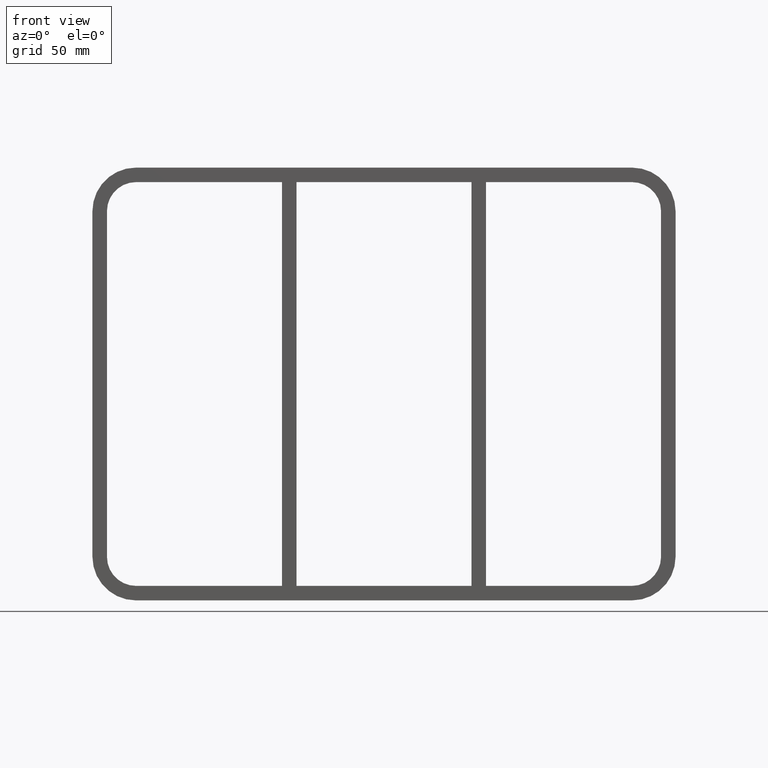
[diagram: clean part render]
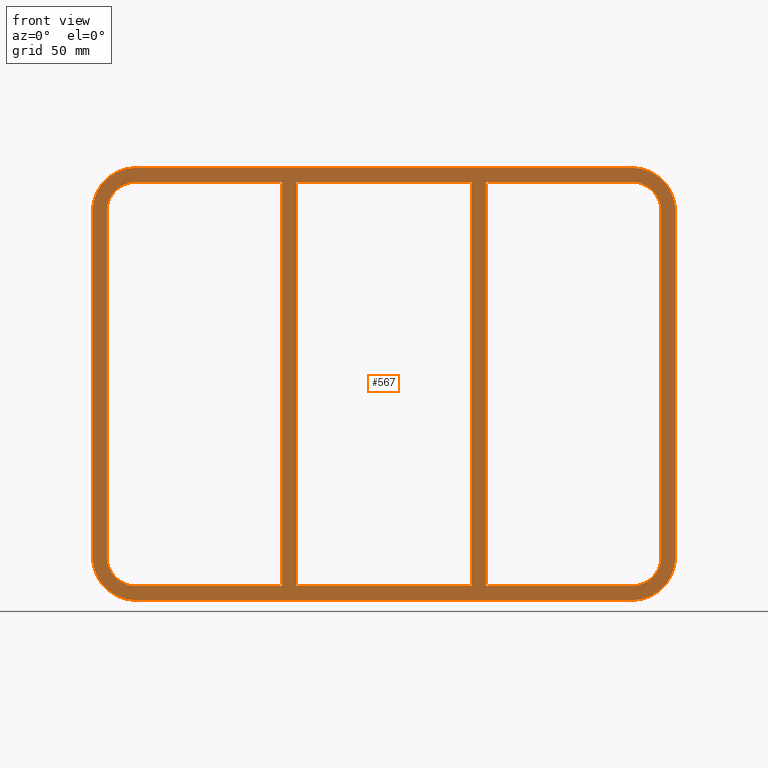
[diagram: same view with one face highlighted and labeled with its STEP entity id]
A machine part, front view. The second image highlights one B-rep face of the part: STEP entity #567.
In plain terms, the highlighted planar face has unit normal (0, 1, 0).
Its self-contained STEP definition (entity closure, byte-faithful):
#73=CARTESIAN_POINT('',(60.249999999998636,-3.0,-139.0));
#74=VERTEX_POINT('',#73);
#75=CARTESIAN_POINT('',(60.2499999999986,-3.0,139.0));
#76=VERTEX_POINT('',#75);
#77=CARTESIAN_POINT('',(60.249999999998636,-3.0,-139.0));
#78=DIRECTION('',(0.0,0.0,1.0));
#79=VECTOR('',#78,278.0);
#80=LINE('',#77,#79);
#81=EDGE_CURVE('',#74,#76,#80,.T.);
#113=CARTESIAN_POINT('',(70.250000000003638,-3.0,139.0));
#114=VERTEX_POINT('',#113);
#115=CARTESIAN_POINT('',(70.250000000003638,-3.0,-138.9999999999842));
#116=VERTEX_POINT('',#115);
#117=CARTESIAN_POINT('',(70.250000000003638,-3.0,139.0));
#118=DIRECTION('',(0.0,0.0,-1.0));
#119=VECTOR('',#118,277.9999999999842);
#120=LINE('',#117,#119);
#121=EDGE_CURVE('',#114,#116,#120,.T.);
#162=CARTESIAN_POINT('',(-60.249999999996362,-3.0,-138.9999999999842));
#163=VERTEX_POINT('',#162);
#170=CARTESIAN_POINT('',(60.249999999998636,-3.0,-139.0));
#171=DIRECTION('',(-1.0,0.0,0.0));
#172=VECTOR('',#171,120.499999999995);
#173=LINE('',#170,#172);
#174=EDGE_CURVE('',#74,#163,#173,.T.);
#185=CARTESIAN_POINT('',(170.75,-3.0,-139.0));
#186=VERTEX_POINT('',#185);
#187=CARTESIAN_POINT('',(170.75,-3.0,-139.0));
#188=DIRECTION('',(-1.0,0.0,0.0));
#189=VECTOR('',#188,100.49999999999635);
#190=LINE('',#187,#189);
#191=EDGE_CURVE('',#186,#116,#190,.T.);
#224=CARTESIAN_POINT('',(170.75000000000003,-3.0,139.0));
#225=VERTEX_POINT('',#224);
#232=CARTESIAN_POINT('',(70.250000000003652,-3.0,139.0));
#233=DIRECTION('',(1.0,0.0,0.0));
#234=VECTOR('',#233,100.4999999999964);
#235=LINE('',#232,#234);
#236=EDGE_CURVE('',#114,#225,#235,.T.);
#247=CARTESIAN_POINT('',(-60.249999999996362,-3.0,139.0));
#248=VERTEX_POINT('',#247);
#249=CARTESIAN_POINT('',(-60.249999999996362,-3.0,139.0));
#250=DIRECTION('',(1.0,0.0,0.0));
#251=VECTOR('',#250,120.49999999999496);
#252=LINE('',#249,#251);
#253=EDGE_CURVE('',#248,#76,#252,.T.);
#277=CARTESIAN_POINT('',(-70.250000000001364,-3.0,-139.0));
#278=VERTEX_POINT('',#277);
#279=CARTESIAN_POINT('',(-70.250000000001407,-3.0,139.0));
#280=VERTEX_POINT('',#279);
#281=CARTESIAN_POINT('',(-70.250000000001364,-3.0,-139.0));
#282=DIRECTION('',(0.0,0.0,1.0));
#283=VECTOR('',#282,278.0);
#284=LINE('',#281,#283);
#285=EDGE_CURVE('',#278,#280,#284,.T.);
#317=CARTESIAN_POINT('',(-60.249999999996362,-3.0,139.0));
#318=DIRECTION('',(0.0,0.0,-1.0));
#319=VECTOR('',#318,277.9999999999842);
#320=LINE('',#317,#319);
#321=EDGE_CURVE('',#248,#163,#320,.T.);
#348=CARTESIAN_POINT('',(-170.75000000000003,-3.0,-139.0));
#349=VERTEX_POINT('',#348);
#356=CARTESIAN_POINT('',(-70.250000000001364,-3.0,-139.0));
#357=DIRECTION('',(-1.0,0.0,0.0));
#358=VECTOR('',#357,100.49999999999869);
#359=LINE('',#356,#358);
#360=EDGE_CURVE('',#278,#349,#359,.T.);
#371=CARTESIAN_POINT('',(-170.75000000000003,-3.0,139.0));
#372=VERTEX_POINT('',#371);
#373=CARTESIAN_POINT('',(-170.75000000000003,-3.0,139.0));
#374=DIRECTION('',(1.0,0.0,0.0));
#375=VECTOR('',#374,100.49999999999862);
#376=LINE('',#373,#375);
#377=EDGE_CURVE('',#372,#280,#376,.T.);
#412=CARTESIAN_POINT('',(200.75000000000003,-3.0,-118.99999999999999));
#413=VERTEX_POINT('',#412);
#420=CARTESIAN_POINT('',(170.75000000000003,-3.0,-149.0));
#421=VERTEX_POINT('',#420);
#422=CARTESIAN_POINT('',(170.75000000000003,-3.0,-118.99999999999999));
#423=DIRECTION('',(0.0,1.0,0.0));
#424=DIRECTION('',(0.707106781186547,0.0,-0.707106781186547));
#425=AXIS2_PLACEMENT_3D('',#422,#423,#424);
#426=CIRCLE('',#425,30.0);
#427=EDGE_CURVE('',#413,#421,#426,.T.);
#438=CARTESIAN_POINT('',(0.0,-3.0,0.0));
#439=DIRECTION('',(0.0,1.0,0.0));
#440=DIRECTION('',(0.0,0.0,1.0));
#441=AXIS2_PLACEMENT_3D('',#438,#439,#440);
#442=PLANE('',#441);
#443=ORIENTED_EDGE('',*,*,#427,.F.);
#444=CARTESIAN_POINT('',(200.75000000000003,-3.0,118.99999999999999));
#445=VERTEX_POINT('',#444);
#446=CARTESIAN_POINT('',(200.75000000000003,-3.0,-119.0));
#447=DIRECTION('',(0.0,0.0,1.0));
#448=VECTOR('',#447,238.0);
#449=LINE('',#446,#448);
#450=EDGE_CURVE('',#413,#445,#449,.T.);
#451=ORIENTED_EDGE('',*,*,#450,.T.);
#452=CARTESIAN_POINT('',(170.75000000000003,-3.0,149.0));
#453=VERTEX_POINT('',#452);
#454=CARTESIAN_POINT('',(170.75000000000003,-3.0,118.99999999999999));
#455=DIRECTION('',(0.0,1.0,0.0));
#456=DIRECTION('',(0.707106781186547,0.0,0.707106781186547));
#457=AXIS2_PLACEMENT_3D('',#454,#455,#456);
#458=CIRCLE('',#457,30.0);
#459=EDGE_CURVE('',#453,#445,#458,.T.);
#460=ORIENTED_EDGE('',*,*,#459,.F.);
#461=CARTESIAN_POINT('',(-170.75000000000003,-3.0,149.0));
#462=VERTEX_POINT('',#461);
#463=CARTESIAN_POINT('',(170.75000000000003,-3.0,149.0));
#464=DIRECTION('',(-1.0,0.0,0.0));
#465=VECTOR('',#464,341.50000000000006);
#466=LINE('',#463,#465);
#467=EDGE_CURVE('',#453,#462,#466,.T.);
#468=ORIENTED_EDGE('',*,*,#467,.T.);
#469=CARTESIAN_POINT('',(-200.75000000000003,-3.0,118.99999999999999));
#470=VERTEX_POINT('',#469);
#471=CARTESIAN_POINT('',(-170.75000000000003,-3.0,118.99999999999999));
#472=DIRECTION('',(0.0,1.0,0.0));
#473=DIRECTION('',(-0.707106781186547,0.0,0.707106781186547));
#474=AXIS2_PLACEMENT_3D('',#471,#472,#473);
#475=CIRCLE('',#474,30.0);
#476=EDGE_CURVE('',#470,#462,#475,.T.);
#477=ORIENTED_EDGE('',*,*,#476,.F.);
#478=CARTESIAN_POINT('',(-200.75000000000003,-3.0,-118.99999999999999));
#479=VERTEX_POINT('',#478);
#480=CARTESIAN_POINT('',(-200.75000000000003,-3.0,119.0));
#481=DIRECTION('',(0.0,0.0,-1.0));
#482=VECTOR('',#481,238.0);
#483=LINE('',#480,#482);
#484=EDGE_CURVE('',#470,#479,#483,.T.);
#485=ORIENTED_EDGE('',*,*,#484,.T.);
#486=CARTESIAN_POINT('',(-170.75000000000003,-3.0,-149.0));
#487=VERTEX_POINT('',#486);
#488=CARTESIAN_POINT('',(-170.75000000000003,-3.0,-118.99999999999999));
#489=DIRECTION('',(0.0,1.0,0.0));
#490=DIRECTION('',(-0.707106781186547,0.0,-0.707106781186547));
#491=AXIS2_PLACEMENT_3D('',#488,#489,#490);
#492=CIRCLE('',#491,30.0);
#493=EDGE_CURVE('',#487,#479,#492,.T.);
#494=ORIENTED_EDGE('',*,*,#493,.F.);
#495=CARTESIAN_POINT('',(-170.75000000000003,-3.0,-149.0));
#496=DIRECTION('',(1.0,0.0,0.0));
#497=VECTOR('',#496,341.50000000000006);
#498=LINE('',#495,#497);
#499=EDGE_CURVE('',#487,#421,#498,.T.);
#500=ORIENTED_EDGE('',*,*,#499,.T.);
#501=EDGE_LOOP('',(#443,#451,#460,#468,#477,#485,#494,#500));
#502=FACE_OUTER_BOUND('',#501,.T.);
#503=ORIENTED_EDGE('',*,*,#174,.T.);
#504=ORIENTED_EDGE('',*,*,#321,.F.);
#505=ORIENTED_EDGE('',*,*,#253,.T.);
#506=ORIENTED_EDGE('',*,*,#81,.F.);
#507=EDGE_LOOP('',(#503,#504,#505,#506));
#508=FACE_BOUND('',#507,.T.);
#509=ORIENTED_EDGE('',*,*,#360,.T.);
#510=CARTESIAN_POINT('',(-190.75000000000003,-3.0,-118.99999999999999));
#511=VERTEX_POINT('',#510);
#512=CARTESIAN_POINT('',(-170.75000000000003,-3.0,-118.99999999999999));
#513=DIRECTION('',(0.0,-1.0,0.0));
#514=DIRECTION('',(-0.707106781186547,0.0,-0.707106781186547));
#515=AXIS2_PLACEMENT_3D('',#512,#513,#514);
#516=CIRCLE('',#515,19.999999999999996);
#517=EDGE_CURVE('',#511,#349,#516,.T.);
#518=ORIENTED_EDGE('',*,*,#517,.F.);
#519=CARTESIAN_POINT('',(-190.75000000000003,-3.0,118.99999999999999));
#520=VERTEX_POINT('',#519);
#521=CARTESIAN_POINT('',(-190.75000000000003,-3.0,-119.0));
#522=DIRECTION('',(0.0,0.0,1.0));
#523=VECTOR('',#522,237.99999999999997);
#524=LINE('',#521,#523);
#525=EDGE_CURVE('',#511,#520,#524,.T.);
#526=ORIENTED_EDGE('',*,*,#525,.T.);
#527=CARTESIAN_POINT('',(-170.75000000000003,-3.0,118.99999999999999));
#528=DIRECTION('',(0.0,-1.0,0.0));
#529=DIRECTION('',(-0.707106781186547,0.0,0.707106781186547));
#530=AXIS2_PLACEMENT_3D('',#527,#528,#529);
#531=CIRCLE('',#530,19.999999999999996);
#532=EDGE_CURVE('',#372,#520,#531,.T.);
#533=ORIENTED_EDGE('',*,*,#532,.F.);
#534=ORIENTED_EDGE('',*,*,#377,.T.);
#535=ORIENTED_EDGE('',*,*,#285,.F.);
#536=EDGE_LOOP('',(#509,#518,#526,#533,#534,#535));
#537=FACE_BOUND('',#536,.T.);
#538=ORIENTED_EDGE('',*,*,#121,.F.);
#539=ORIENTED_EDGE('',*,*,#236,.T.);
#540=CARTESIAN_POINT('',(190.75,-3.0,118.99999999999999));
#541=VERTEX_POINT('',#540);
#542=CARTESIAN_POINT('',(170.75000000000003,-3.0,118.99999999999999));
#543=DIRECTION('',(0.0,-1.0,0.0));
#544=DIRECTION('',(0.707106781186547,0.0,0.707106781186547));
#545=AXIS2_PLACEMENT_3D('',#542,#543,#544);
#546=CIRCLE('',#545,19.999999999999996);
#547=EDGE_CURVE('',#541,#225,#546,.T.);
#548=ORIENTED_EDGE('',*,*,#547,.F.);
#549=CARTESIAN_POINT('',(190.75,-3.0,-118.99999999999999));
#550=VERTEX_POINT('',#549);
#551=CARTESIAN_POINT('',(190.75,-3.0,119.0));
#552=DIRECTION('',(0.0,0.0,-1.0));
#553=VECTOR('',#552,237.99999999999997);
#554=LINE('',#551,#553);
#555=EDGE_CURVE('',#541,#550,#554,.T.);
#556=ORIENTED_EDGE('',*,*,#555,.T.);
#557=CARTESIAN_POINT('',(170.75,-3.0,-118.99999999999999));
#558=DIRECTION('',(0.0,-1.0,0.0));
#559=DIRECTION('',(0.707106781186547,0.0,-0.707106781186547));
#560=AXIS2_PLACEMENT_3D('',#557,#558,#559);
#561=CIRCLE('',#560,19.999999999999996);
#562=EDGE_CURVE('',#186,#550,#561,.T.);
#563=ORIENTED_EDGE('',*,*,#562,.F.);
#564=ORIENTED_EDGE('',*,*,#191,.T.);
#565=EDGE_LOOP('',(#538,#539,#548,#556,#563,#564));
#566=FACE_BOUND('',#565,.T.);
#567=ADVANCED_FACE('',(#502,#508,#537,#566),#442,.F.);